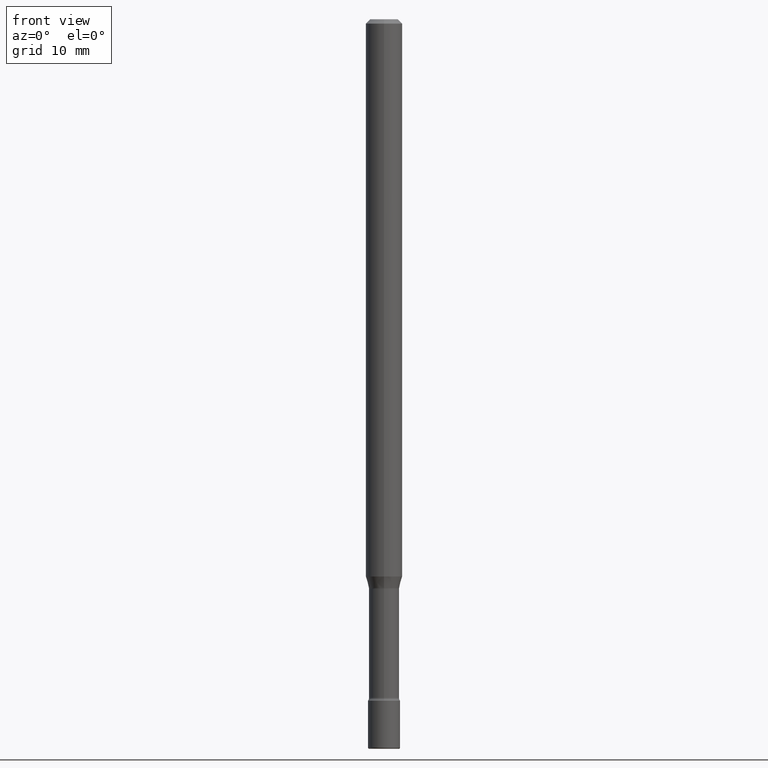
[diagram: clean part render]
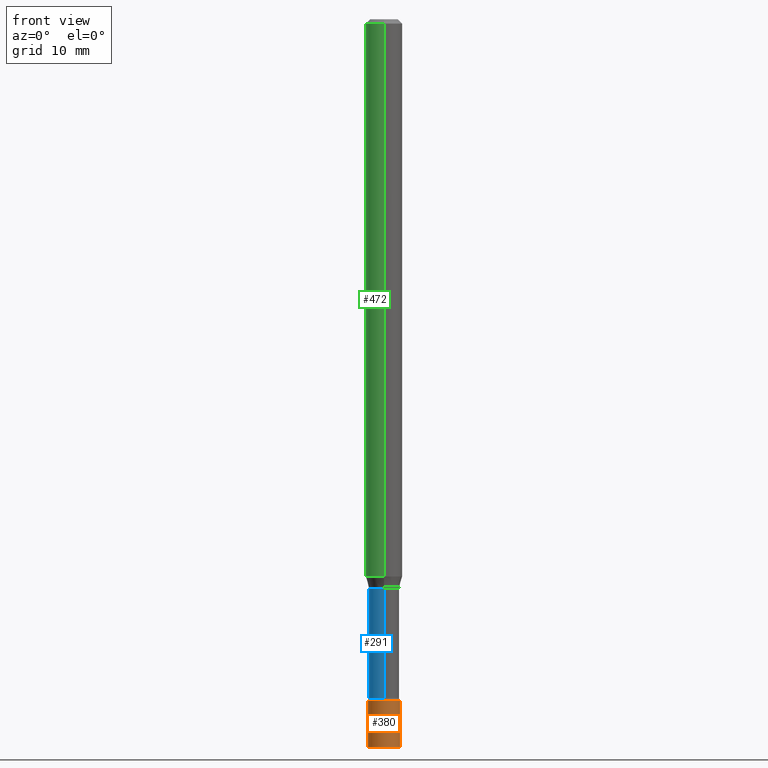
[diagram: same view with three faces highlighted in distinct colors, each labeled with its STEP entity id]
A machine part, front view with three faces highlighted in distinct colors.
Their STEP definitions:

[orange] entity #380 — the highlighted cylindrical surface (edge-blend (fillet) strip) has radius 1.397 mm, axis along (-0, 0, 1).
#14 = EDGE_CURVE ( 'NONE', #562, #310, #395, .T. ) ;
#16 = AXIS2_PLACEMENT_3D ( 'NONE', #461, #452, #414 ) ;
#22 = VERTEX_POINT ( 'NONE', #458 ) ;
#28 = DIRECTION ( 'NONE',  ( 1.000000000000000000, -6.982962677686279332E-15, 0.000000000000000000 ) ) ;
#44 = FACE_OUTER_BOUND ( 'NONE', #238, .T. ) ;
#49 = CIRCLE ( 'NONE', #139, 0.05500000000000000028 ) ;
#88 = EDGE_CURVE ( 'NONE', #341, #562, #350, .T. ) ;
#90 = CARTESIAN_POINT ( 'NONE',  ( -0.05500000000000000028, 3.907985046680551042E-16, -2.705414299640198362E-30 ) ) ;
#92 = LINE ( 'NONE', #221, #556 ) ;
#103 = DIRECTION ( 'NONE',  ( -2.445468806185136877E-29, 3.491481338843145188E-15, 1.000000000000000000 ) ) ;
#126 = CYLINDRICAL_SURFACE ( 'NONE', #16, 0.05500000000000000028 ) ;
#139 = AXIS2_PLACEMENT_3D ( 'NONE', #174, #296, #28 ) ;
#151 = CARTESIAN_POINT ( 'NONE',  ( 5.710169662442294357E-29, -8.152608926198745099E-15, -2.334999999999999964 ) ) ;
#153 = DIRECTION ( 'NONE',  ( -2.445468806185136597E-29, 3.491481338843145583E-15, 1.000000000000000000 ) ) ;
#161 = VECTOR ( 'NONE', #103, 39.37007874015748143 ) ;
#163 = CARTESIAN_POINT ( 'NONE',  ( -0.05499999999999988926, -8.320447435745593669E-15, -2.495000000000000107 ) ) ;
#174 = CARTESIAN_POINT ( 'NONE',  ( 6.101444671431915719E-29, -8.711245940413648329E-15, -2.495000000000000107 ) ) ;
#177 = ORIENTED_EDGE ( 'NONE', *, *, #14, .F. ) ;
#194 = AXIS2_PLACEMENT_3D ( 'NONE', #151, #153, #451 ) ;
#221 = CARTESIAN_POINT ( 'NONE',  ( 0.05500000000000000028, -3.840629472727446888E-16, 2.681897226687764826E-30 ) ) ;
#238 = EDGE_LOOP ( 'NONE', ( #280, #447, #428, #177 ) ) ;
#276 = EDGE_CURVE ( 'NONE', #341, #22, #49, .T. ) ;
#280 = ORIENTED_EDGE ( 'NONE', *, *, #88, .F. ) ;
#296 = DIRECTION ( 'NONE',  ( -2.445468806185136597E-29, 3.491481338843145583E-15, 1.000000000000000000 ) ) ;
#310 = VERTEX_POINT ( 'NONE', #344 ) ;
#339 = DIRECTION ( 'NONE',  ( -2.445468806185136877E-29, 3.491481338843145188E-15, 1.000000000000000000 ) ) ;
#341 = VERTEX_POINT ( 'NONE', #163 ) ;
#344 = CARTESIAN_POINT ( 'NONE',  ( 0.05500000000000000028, -8.536671873471490084E-15, -2.334999999999999964 ) ) ;
#350 = LINE ( 'NONE', #90, #161 ) ;
#380 = ADVANCED_FACE ( 'NONE', ( #44 ), #126, .T. ) ;
#395 = CIRCLE ( 'NONE', #194, 0.05500000000000000028 ) ;
#405 = CARTESIAN_POINT ( 'NONE',  ( -0.05500000000000000028, -8.041128928638142054E-15, -2.334999999999999964 ) ) ;
#414 = DIRECTION ( 'NONE',  ( 1.000000000000000000, -6.982962677686266711E-15, 4.876176775795935793E-29 ) ) ;
#418 = EDGE_CURVE ( 'NONE', #22, #310, #92, .T. ) ;
#428 = ORIENTED_EDGE ( 'NONE', *, *, #418, .T. ) ;
#447 = ORIENTED_EDGE ( 'NONE', *, *, #276, .T. ) ;
#451 = DIRECTION ( 'NONE',  ( 1.000000000000000000, -6.982962677686262766E-15, 0.000000000000000000 ) ) ;
#452 = DIRECTION ( 'NONE',  ( -2.445468806185136597E-29, 3.491481338843145583E-15, 1.000000000000000000 ) ) ;
#458 = CARTESIAN_POINT ( 'NONE',  ( 0.05499999999999988926, -9.095308887686390158E-15, -2.495000000000000107 ) ) ;
#461 = CARTESIAN_POINT ( 'NONE',  ( 0.000000000000000000, 0.000000000000000000, 0.000000000000000000 ) ) ;
#556 = VECTOR ( 'NONE', #339, 39.37007874015748143 ) ;
#562 = VERTEX_POINT ( 'NONE', #405 ) ;

[blue] entity #291 — the highlighted cylindrical surface (edge-blend (fillet) strip) has radius 1.3132 mm, axis along (-0, 0, 1).
#4 = CIRCLE ( 'NONE', #540, 0.05169999999999998902 ) ;
#9 = LINE ( 'NONE', #197, #250 ) ;
#62 = ORIENTED_EDGE ( 'NONE', *, *, #260, .T. ) ;
#68 = AXIS2_PLACEMENT_3D ( 'NONE', #533, #155, #400 ) ;
#86 = FACE_OUTER_BOUND ( 'NONE', #484, .T. ) ;
#108 = DIRECTION ( 'NONE',  ( -2.445442429917292137E-29, 3.491519111159943192E-15, 1.000000000000000000 ) ) ;
#137 = DIRECTION ( 'NONE',  ( -2.445442429917292137E-29, 3.491519111159943192E-15, 1.000000000000000000 ) ) ;
#148 = DIRECTION ( 'NONE',  ( -2.445442429917292137E-29, 3.491519111159942797E-15, 1.000000000000000000 ) ) ;
#152 = AXIS2_PLACEMENT_3D ( 'NONE', #209, #180, #292 ) ;
#155 = DIRECTION ( 'NONE',  ( -2.445442429917292137E-29, 3.491519111159942797E-15, 1.000000000000000000 ) ) ;
#165 = CARTESIAN_POINT ( 'NONE',  ( -3.610191704363799049E-16, -0.05169999999999998902, 6.585849369382151154E-16 ) ) ;
#169 = VERTEX_POINT ( 'NONE', #567 ) ;
#180 = DIRECTION ( 'NONE',  ( -2.445442429917292137E-29, 3.491519111159942797E-15, 1.000000000000000000 ) ) ;
#197 = CARTESIAN_POINT ( 'NONE',  ( 3.673505943879716688E-16, 0.05169999999999998902, 2.975618608442770603E-16 ) ) ;
#209 = CARTESIAN_POINT ( 'NONE',  ( -1.169113584055446105E-44, 1.669184350826100908E-30, 4.780733988912460139E-16 ) ) ;
#213 = ORIENTED_EDGE ( 'NONE', *, *, #266, .F. ) ;
#241 = EDGE_CURVE ( 'NONE', #368, #419, #479, .T. ) ;
#250 = VECTOR ( 'NONE', #108, 39.37007874015748143 ) ;
#260 = EDGE_CURVE ( 'NONE', #169, #288, #4, .T. ) ;
#264 = ORIENTED_EDGE ( 'NONE', *, *, #394, .T. ) ;
#266 = EDGE_CURVE ( 'NONE', #169, #368, #9, .T. ) ;
#268 = CARTESIAN_POINT ( 'NONE',  ( 3.673505943880287133E-16, 0.05169999999999318890, -1.951974787463811367 ) ) ;
#274 = VECTOR ( 'NONE', #137, 39.37007874015748143 ) ;
#287 = LINE ( 'NONE', #165, #274 ) ;
#288 = VERTEX_POINT ( 'NONE', #495 ) ;
#291 = ADVANCED_FACE ( 'NONE', ( #86 ), #539, .T. ) ;
#292 = DIRECTION ( 'NONE',  ( -6.982962677686266711E-15, -1.000000000000000000, 3.491519111159944375E-15 ) ) ;
#317 = DIRECTION ( 'NONE',  ( -6.982962677686266711E-15, -1.000000000000000000, 5.284038672464726492E-15 ) ) ;
#334 = CARTESIAN_POINT ( 'NONE',  ( -3.610191704363322281E-16, -0.05170000000000680995, -1.951974787463810701 ) ) ;
#368 = VERTEX_POINT ( 'NONE', #268 ) ;
#394 = EDGE_CURVE ( 'NONE', #288, #419, #287, .T. ) ;
#400 = DIRECTION ( 'NONE',  ( -6.982962677686266711E-15, -1.000000000000000000, 5.284038672464726492E-15 ) ) ;
#419 = VERTEX_POINT ( 'NONE', #334 ) ;
#474 = CARTESIAN_POINT ( 'NONE',  ( 5.687153457231412235E-29, -8.119923307576861292E-15, -2.325613307291702903 ) ) ;
#479 = CIRCLE ( 'NONE', #68, 0.05169999999999999596 ) ;
#484 = EDGE_LOOP ( 'NONE', ( #213, #62, #264, #548 ) ) ;
#495 = CARTESIAN_POINT ( 'NONE',  ( -3.610191704363230083E-16, -0.05170000000000810753, -2.325613307291702458 ) ) ;
#533 = CARTESIAN_POINT ( 'NONE',  ( 4.773441967392791886E-29, -6.815357274932263739E-15, -1.951974787463810923 ) ) ;
#539 = CYLINDRICAL_SURFACE ( 'NONE', #152, 0.05169999999999998902 ) ;
#540 = AXIS2_PLACEMENT_3D ( 'NONE', #474, #148, #317 ) ;
#548 = ORIENTED_EDGE ( 'NONE', *, *, #241, .F. ) ;
#567 = CARTESIAN_POINT ( 'NONE',  ( 3.790745495280705543E-16, 0.05169999999999187051, -2.325613307291702903 ) ) ;

[green] entity #472 — the highlighted cylindrical surface (edge-blend (fillet) strip) has radius 1.5875 mm, axis along (-0, 0, 1).
#6 = EDGE_CURVE ( 'NONE', #45, #112, #424, .T. ) ;
#11 = VERTEX_POINT ( 'NONE', #13 ) ;
#13 = CARTESIAN_POINT ( 'NONE',  ( -4.364351673553447815E-16, -0.06250000000000664746, -1.909693851278255972 ) ) ;
#45 = VERTEX_POINT ( 'NONE', #329 ) ;
#55 = AXIS2_PLACEMENT_3D ( 'NONE', #401, #362, #406 ) ;
#83 = DIRECTION ( 'NONE',  ( -6.982962677686265922E-15, -1.000000000000000000, 3.491519111159943586E-15 ) ) ;
#84 = EDGE_CURVE ( 'NONE', #134, #11, #367, .T. ) ;
#101 = DIRECTION ( 'NONE',  ( -6.982962677686265922E-15, -1.000000000000000000, 4.370956789862821150E-15 ) ) ;
#112 = VERTEX_POINT ( 'NONE', #429 ) ;
#115 = VECTOR ( 'NONE', #430, 39.37007874015748143 ) ;
#122 = LINE ( 'NONE', #374, #439 ) ;
#134 = VERTEX_POINT ( 'NONE', #135 ) ;
#135 = CARTESIAN_POINT ( 'NONE',  ( 4.440892098501093562E-16, 0.06249999999999334560, -1.909693851278256416 ) ) ;
#182 = CYLINDRICAL_SURFACE ( 'NONE', #487, 0.06250000000000000000 ) ;
#185 = LINE ( 'NONE', #347, #115 ) ;
#219 = FACE_OUTER_BOUND ( 'NONE', #325, .T. ) ;
#225 = CARTESIAN_POINT ( 'NONE',  ( -1.169113584055446105E-44, 1.669184350826100908E-30, 4.780733988912460139E-16 ) ) ;
#246 = ORIENTED_EDGE ( 'NONE', *, *, #6, .F. ) ;
#258 = DIRECTION ( 'NONE',  ( -2.445442429917292137E-29, 3.491519111159943192E-15, 1.000000000000000000 ) ) ;
#273 = CARTESIAN_POINT ( 'NONE',  ( 4.670046372068011457E-29, -6.667732578202665138E-15, -1.909693851278256194 ) ) ;
#325 = EDGE_LOOP ( 'NONE', ( #363, #553, #348, #246 ) ) ;
#329 = CARTESIAN_POINT ( 'NONE',  ( 4.440892098501096520E-16, 0.06249999999999995837, -0.01500000000000024578 ) ) ;
#347 = CARTESIAN_POINT ( 'NONE',  ( -4.364351673553916201E-16, -0.06250000000000000000, 6.962933433387425620E-16 ) ) ;
#348 = ORIENTED_EDGE ( 'NONE', *, *, #468, .T. ) ;
#362 = DIRECTION ( 'NONE',  ( -2.445442429917292137E-29, 3.491519111159942797E-15, 1.000000000000000000 ) ) ;
#363 = ORIENTED_EDGE ( 'NONE', *, *, #364, .F. ) ;
#364 = EDGE_CURVE ( 'NONE', #134, #45, #122, .T. ) ;
#367 = CIRCLE ( 'NONE', #514, 0.06250000000000000000 ) ;
#374 = CARTESIAN_POINT ( 'NONE',  ( 4.440892098500625669E-16, 0.06250000000000000000, 2.598534544437496137E-16 ) ) ;
#376 = DIRECTION ( 'NONE',  ( -2.445442429917292137E-29, 3.491519111159942797E-15, 1.000000000000000000 ) ) ;
#401 = CARTESIAN_POINT ( 'NONE',  ( 3.668163644875944826E-31, -5.237278666739923958E-17, -0.01500000000000002720 ) ) ;
#406 = DIRECTION ( 'NONE',  ( -6.982962677686265922E-15, -1.000000000000000000, 3.483106191921935554E-15 ) ) ;
#424 = CIRCLE ( 'NONE', #55, 0.06250000000000000000 ) ;
#429 = CARTESIAN_POINT ( 'NONE',  ( -4.364351673553912750E-16, -0.06250000000000005551, -0.01499999999999981036 ) ) ;
#430 = DIRECTION ( 'NONE',  ( -2.445442429917292137E-29, 3.491519111159943192E-15, 1.000000000000000000 ) ) ;
#439 = VECTOR ( 'NONE', #258, 39.37007874015748143 ) ;
#468 = EDGE_CURVE ( 'NONE', #11, #112, #185, .T. ) ;
#471 = DIRECTION ( 'NONE',  ( -2.445442429917292137E-29, 3.491519111159942797E-15, 1.000000000000000000 ) ) ;
#472 = ADVANCED_FACE ( 'NONE', ( #219 ), #182, .T. ) ;
#487 = AXIS2_PLACEMENT_3D ( 'NONE', #225, #376, #83 ) ;
#514 = AXIS2_PLACEMENT_3D ( 'NONE', #273, #471, #101 ) ;
#553 = ORIENTED_EDGE ( 'NONE', *, *, #84, .T. ) ;